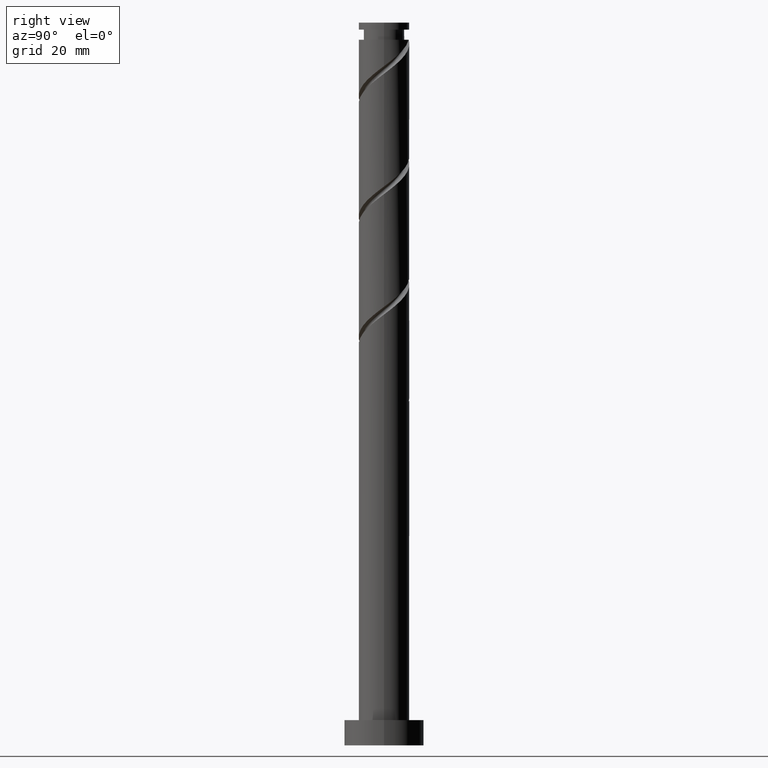
[diagram: clean part render]
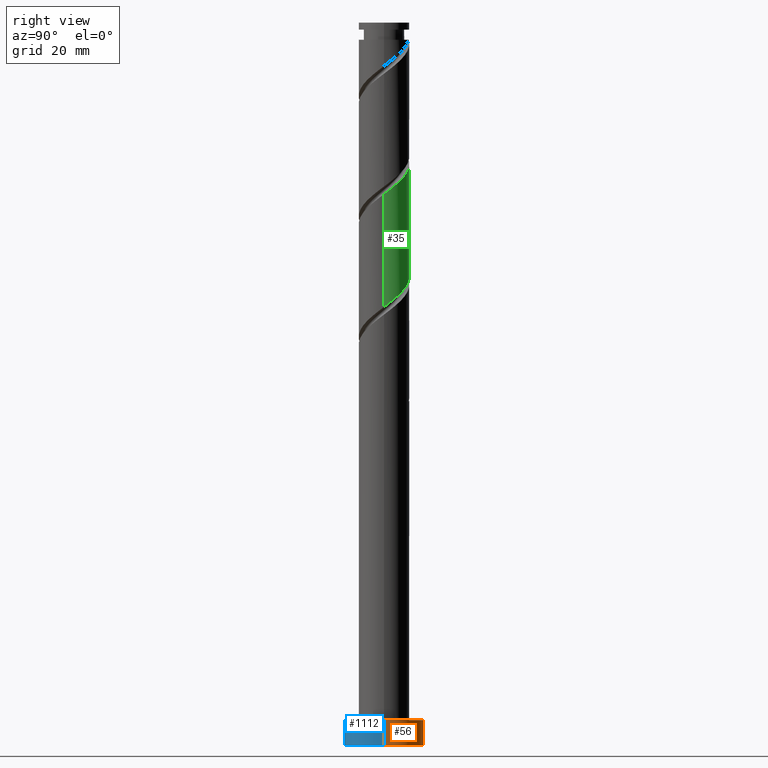
[diagram: same view with three faces highlighted in distinct colors, each labeled with its STEP entity id]
A machine part, right view with three faces highlighted in distinct colors.
Their STEP definitions:

[orange] entity #56 — the highlighted cylindrical surface (partial cylindrical patch) has radius 11 mm, axis along (-0, -0, -1).
#31 = AXIS2_PLACEMENT_3D ( 'NONE', #1274, #731, #1257 ) ;
#56 = ADVANCED_FACE ( 'NONE', ( #167 ), #192, .T. ) ;
#60 = VECTOR ( 'NONE', #1080, 1000.000000000000000 ) ;
#122 = CARTESIAN_POINT ( 'NONE',  ( 11.00000000000000000, 1.347111479062088405E-15, 7.000000000000000000 ) ) ;
#167 = FACE_OUTER_BOUND ( 'NONE', #1572, .T. ) ;
#192 = CYLINDRICAL_SURFACE ( 'NONE', #523, 11.00000000000000000 ) ;
#338 = CIRCLE ( 'NONE', #31, 11.00000000000000000 ) ;
#393 = CARTESIAN_POINT ( 'NONE',  ( -11.00000000000000000, 0.000000000000000000, 7.000000000000000000 ) ) ;
#431 = DIRECTION ( 'NONE',  ( 0.000000000000000000, 0.000000000000000000, 1.000000000000000000 ) ) ;
#460 = CARTESIAN_POINT ( 'NONE',  ( 0.000000000000000000, 0.000000000000000000, 0.000000000000000000 ) ) ;
#523 = AXIS2_PLACEMENT_3D ( 'NONE', #1275, #1118, #596 ) ;
#596 = DIRECTION ( 'NONE',  ( -1.000000000000000000, 0.000000000000000000, 0.000000000000000000 ) ) ;
#624 = ORIENTED_EDGE ( 'NONE', *, *, #926, .F. ) ;
#650 = VERTEX_POINT ( 'NONE', #122 ) ;
#705 = VERTEX_POINT ( 'NONE', #1103 ) ;
#731 = DIRECTION ( 'NONE',  ( 0.000000000000000000, 0.000000000000000000, 1.000000000000000000 ) ) ;
#745 = AXIS2_PLACEMENT_3D ( 'NONE', #460, #431, #995 ) ;
#926 = EDGE_CURVE ( 'NONE', #650, #1419, #338, .T. ) ;
#939 = LINE ( 'NONE', #1610, #60 ) ;
#957 = CARTESIAN_POINT ( 'NONE',  ( -11.00000000000000000, 0.000000000000000000, 7.000000000000000000 ) ) ;
#995 = DIRECTION ( 'NONE',  ( 1.000000000000000000, 0.000000000000000000, 0.000000000000000000 ) ) ;
#1080 = DIRECTION ( 'NONE',  ( -0.000000000000000000, -0.000000000000000000, -1.000000000000000000 ) ) ;
#1103 = CARTESIAN_POINT ( 'NONE',  ( -11.00000000000000000, 0.000000000000000000, 0.000000000000000000 ) ) ;
#1118 = DIRECTION ( 'NONE',  ( -0.000000000000000000, -0.000000000000000000, -1.000000000000000000 ) ) ;
#1176 = CARTESIAN_POINT ( 'NONE',  ( 11.00000000000000000, 1.347111479062088405E-15, 0.000000000000000000 ) ) ;
#1203 = VERTEX_POINT ( 'NONE', #1176 ) ;
#1254 = VECTOR ( 'NONE', #1502, 1000.000000000000000 ) ;
#1257 = DIRECTION ( 'NONE',  ( 1.000000000000000000, 0.000000000000000000, 0.000000000000000000 ) ) ;
#1267 = EDGE_CURVE ( 'NONE', #1419, #705, #1619, .T. ) ;
#1274 = CARTESIAN_POINT ( 'NONE',  ( 0.000000000000000000, 0.000000000000000000, 7.000000000000000000 ) ) ;
#1275 = CARTESIAN_POINT ( 'NONE',  ( 0.000000000000000000, 0.000000000000000000, 7.000000000000000000 ) ) ;
#1284 = ORIENTED_EDGE ( 'NONE', *, *, #1605, .T. ) ;
#1419 = VERTEX_POINT ( 'NONE', #393 ) ;
#1480 = CIRCLE ( 'NONE', #745, 11.00000000000000000 ) ;
#1489 = EDGE_CURVE ( 'NONE', #650, #1203, #939, .T. ) ;
#1502 = DIRECTION ( 'NONE',  ( -0.000000000000000000, -0.000000000000000000, -1.000000000000000000 ) ) ;
#1545 = ORIENTED_EDGE ( 'NONE', *, *, #1267, .F. ) ;
#1572 = EDGE_LOOP ( 'NONE', ( #624, #1694, #1284, #1545 ) ) ;
#1605 = EDGE_CURVE ( 'NONE', #1203, #705, #1480, .T. ) ;
#1610 = CARTESIAN_POINT ( 'NONE',  ( 11.00000000000000000, 1.347111479062088405E-15, 7.000000000000000000 ) ) ;
#1619 = LINE ( 'NONE', #957, #1254 ) ;
#1694 = ORIENTED_EDGE ( 'NONE', *, *, #1489, .T. ) ;

[blue] entity #1112 — the highlighted cylindrical surface (partial cylindrical patch) has radius 11 mm, axis along (-0, -0, -1).
#39 = DIRECTION ( 'NONE',  ( 0.000000000000000000, 0.000000000000000000, 1.000000000000000000 ) ) ;
#60 = VECTOR ( 'NONE', #1080, 1000.000000000000000 ) ;
#108 = EDGE_CURVE ( 'NONE', #1419, #650, #988, .T. ) ;
#122 = CARTESIAN_POINT ( 'NONE',  ( 11.00000000000000000, 1.347111479062088405E-15, 7.000000000000000000 ) ) ;
#215 = AXIS2_PLACEMENT_3D ( 'NONE', #849, #39, #578 ) ;
#229 = ORIENTED_EDGE ( 'NONE', *, *, #1489, .F. ) ;
#265 = EDGE_LOOP ( 'NONE', ( #229, #576, #732, #1087 ) ) ;
#332 = DIRECTION ( 'NONE',  ( 0.000000000000000000, 0.000000000000000000, 1.000000000000000000 ) ) ;
#344 = DIRECTION ( 'NONE',  ( -0.000000000000000000, -0.000000000000000000, -1.000000000000000000 ) ) ;
#371 = DIRECTION ( 'NONE',  ( -1.000000000000000000, 0.000000000000000000, 0.000000000000000000 ) ) ;
#393 = CARTESIAN_POINT ( 'NONE',  ( -11.00000000000000000, 0.000000000000000000, 7.000000000000000000 ) ) ;
#486 = FACE_OUTER_BOUND ( 'NONE', #265, .T. ) ;
#572 = CARTESIAN_POINT ( 'NONE',  ( 0.000000000000000000, 0.000000000000000000, 0.000000000000000000 ) ) ;
#576 = ORIENTED_EDGE ( 'NONE', *, *, #108, .F. ) ;
#578 = DIRECTION ( 'NONE',  ( 1.000000000000000000, 0.000000000000000000, 0.000000000000000000 ) ) ;
#650 = VERTEX_POINT ( 'NONE', #122 ) ;
#705 = VERTEX_POINT ( 'NONE', #1103 ) ;
#732 = ORIENTED_EDGE ( 'NONE', *, *, #1267, .T. ) ;
#768 = AXIS2_PLACEMENT_3D ( 'NONE', #1459, #344, #371 ) ;
#849 = CARTESIAN_POINT ( 'NONE',  ( 0.000000000000000000, 0.000000000000000000, 7.000000000000000000 ) ) ;
#939 = LINE ( 'NONE', #1610, #60 ) ;
#957 = CARTESIAN_POINT ( 'NONE',  ( -11.00000000000000000, 0.000000000000000000, 7.000000000000000000 ) ) ;
#988 = CIRCLE ( 'NONE', #215, 11.00000000000000000 ) ;
#1032 = CYLINDRICAL_SURFACE ( 'NONE', #768, 11.00000000000000000 ) ;
#1049 = AXIS2_PLACEMENT_3D ( 'NONE', #572, #332, #1131 ) ;
#1080 = DIRECTION ( 'NONE',  ( -0.000000000000000000, -0.000000000000000000, -1.000000000000000000 ) ) ;
#1087 = ORIENTED_EDGE ( 'NONE', *, *, #1528, .T. ) ;
#1103 = CARTESIAN_POINT ( 'NONE',  ( -11.00000000000000000, 0.000000000000000000, 0.000000000000000000 ) ) ;
#1112 = ADVANCED_FACE ( 'NONE', ( #486 ), #1032, .T. ) ;
#1131 = DIRECTION ( 'NONE',  ( 1.000000000000000000, 0.000000000000000000, 0.000000000000000000 ) ) ;
#1176 = CARTESIAN_POINT ( 'NONE',  ( 11.00000000000000000, 1.347111479062088405E-15, 0.000000000000000000 ) ) ;
#1203 = VERTEX_POINT ( 'NONE', #1176 ) ;
#1254 = VECTOR ( 'NONE', #1502, 1000.000000000000000 ) ;
#1267 = EDGE_CURVE ( 'NONE', #1419, #705, #1619, .T. ) ;
#1336 = CIRCLE ( 'NONE', #1049, 11.00000000000000000 ) ;
#1419 = VERTEX_POINT ( 'NONE', #393 ) ;
#1459 = CARTESIAN_POINT ( 'NONE',  ( 0.000000000000000000, 0.000000000000000000, 7.000000000000000000 ) ) ;
#1489 = EDGE_CURVE ( 'NONE', #650, #1203, #939, .T. ) ;
#1502 = DIRECTION ( 'NONE',  ( -0.000000000000000000, -0.000000000000000000, -1.000000000000000000 ) ) ;
#1528 = EDGE_CURVE ( 'NONE', #705, #1203, #1336, .T. ) ;
#1610 = CARTESIAN_POINT ( 'NONE',  ( 11.00000000000000000, 1.347111479062088405E-15, 7.000000000000000000 ) ) ;
#1619 = LINE ( 'NONE', #957, #1254 ) ;

[green] entity #35 — the highlighted cylindrical surface (edge-blend (fillet) strip) has radius 7 mm, axis along (-0, -0, -1).
#9 = DIRECTION ( 'NONE',  ( -0.000000000000000000, -0.000000000000000000, -1.000000000000000000 ) ) ;
#35 = ADVANCED_FACE ( 'NONE', ( #321 ), #733, .T. ) ;
#46 = CARTESIAN_POINT ( 'NONE',  ( -3.945914127944259331, 5.854831194903828973, 164.0187916055642461 ) ) ;
#74 =( BOUNDED_CURVE ( )  B_SPLINE_CURVE ( 2, ( #566, #1533, #1115, #722, #998, #1649, #1525, #1391, #711, #1256, #574, #1657, #443, #990, #306, #856, #1264, #46, #585, #1133, #453, #1543, #369, #1574, #757, #1435, #96 ),
 .UNSPECIFIED., .F., .T. ) 
 B_SPLINE_CURVE_WITH_KNOTS ( ( 3, 2, 2, 2, 2, 2, 2, 2, 2, 2, 2, 2, 2, 3 ),
 ( 0.4295317669814462946, 0.4375000000000000000, 0.4479166666666666297, 0.4583333333333333703, 0.4687500000000000000, 0.4791666666666666297, 0.4895833333333333703, 0.5000000000000000000, 0.5104166666666667407, 0.5208333333333332593, 0.5312500000000000000, 0.5416666666666667407, 0.5520833333333332593, 0.5545317669814462391 ),
 .UNSPECIFIED. ) 
 CURVE ( )  GEOMETRIC_REPRESENTATION_ITEM ( )  RATIONAL_B_SPLINE_CURVE ( ( 0.9062941362546410584, 0.9031415850403454737, 0.9090909090909207180, 0.9013135103398393078, 0.9090909090909207180, 0.9013135103398393078, 0.9090909090909207180, 0.9013135103398393078, 0.9090909090909207180, 0.9013135103398393078, 0.9090909090909207180, 0.9013135103398393078, 0.9090909090909207180, 0.9013135103398393078, 0.9090909090909207180, 0.9013135103398393078, 0.9090909090909207180, 0.9013135103398393078, 0.9090909090909207180, 0.9013135103398393078, 0.9090909090909207180, 0.9013135103398393078, 0.9090909090909207180, 0.9013135103398393078, 0.9090909090909207180, 0.9072628343904145520, 0.9062941362546410584 ) ) 
 REPRESENTATION_ITEM ( '' )  );
#96 = CARTESIAN_POINT ( 'NONE',  ( -7.000000000000008882, -1.854269271008897273E-15, 169.2052249503541645 ) ) ;
#113 = VECTOR ( 'NONE', #9, 1000.000000000000000 ) ;
#116 = EDGE_CURVE ( 'NONE', #981, #1464, #1472, .T. ) ;
#147 = ORIENTED_EDGE ( 'NONE', *, *, #116, .F. ) ;
#183 = EDGE_CURVE ( 'NONE', #1266, #356, #74, .T. ) ;
#207 = CARTESIAN_POINT ( 'NONE',  ( -6.860000000000000320, 1.392982411949269972, 136.9354582722308749 ) ) ;
#216 = EDGE_CURVE ( 'NONE', #1266, #1464, #1031, .T. ) ;
#238 = CARTESIAN_POINT ( 'NONE',  ( 7.000000000000000000, 0.2151936616037169181, 121.4955219488024056 ) ) ;
#261 = CARTESIAN_POINT ( 'NONE',  ( -1.349808202769843923, 6.930173478468214299, 130.6854582722308464 ) ) ;
#306 = CARTESIAN_POINT ( 'NONE',  ( -1.392982411949268640, 6.860000000000009202, 161.9354582722309033 ) ) ;
#321 = FACE_OUTER_BOUND ( 'NONE', #1096, .T. ) ;
#356 = VERTEX_POINT ( 'NONE', #1165 ) ;
#364 = CARTESIAN_POINT ( 'NONE',  ( -5.854831194903820979, 3.945914127944254890, 134.8521249388975605 ) ) ;
#369 = CARTESIAN_POINT ( 'NONE',  ( -6.637425475935891939, 2.223641844227017828, 167.4910138277864178 ) ) ;
#379 = CARTESIAN_POINT ( 'NONE',  ( 3.121016336671535107, 6.265720790637690385, 127.2132360500086463 ) ) ;
#394 = CARTESIAN_POINT ( 'NONE',  ( -3.097475485684180629, 6.344677473403557144, 132.0743471611197606 ) ) ;
#399 = ORIENTED_EDGE ( 'NONE', *, *, #183, .F. ) ;
#416 = ORIENTED_EDGE ( 'NONE', *, *, #216, .T. ) ;
#432 = CARTESIAN_POINT ( 'NONE',  ( -7.000000000000003553, 0.7035264706814440272, 137.4655985582517133 ) ) ;
#443 = CARTESIAN_POINT ( 'NONE',  ( 0.4299809621350623723, 6.986781546048331570, 160.5465693833419891 ) ) ;
#446 = CARTESIAN_POINT ( 'NONE',  ( -7.000000000000001776, 7.476892221810113420E-15, 137.9990249274409564 ) ) ;
#453 = CARTESIAN_POINT ( 'NONE',  ( -5.835739828502646276, 3.865765209376801792, 166.1021249388975036 ) ) ;
#500 = CARTESIAN_POINT ( 'NONE',  ( 7.000000000000000000, 8.572527594031473190E-16, 200.0000000000000000 ) ) ;
#513 = CARTESIAN_POINT ( 'NONE',  ( -4.634054933069407411, 5.326802183601722085, 133.4632360500086179 ) ) ;
#566 = CARTESIAN_POINT ( 'NONE',  ( 7.000000000000008882, -1.196302755489611383E-16, 152.5385582836874505 ) ) ;
#574 = CARTESIAN_POINT ( 'NONE',  ( 2.223641844227020048, 6.637425475935890162, 159.1576804944530750 ) ) ;
#585 = CARTESIAN_POINT ( 'NONE',  ( -4.636358155772993150, 5.244443063986621745, 164.7132360500086747 ) ) ;
#633 = CARTESIAN_POINT ( 'NONE',  ( -6.676610386371565120, 2.296118545398805111, 136.2410138277864462 ) ) ;
#687 = ORIENTED_EDGE ( 'NONE', *, *, #1316, .F. ) ;
#701 = AXIS2_PLACEMENT_3D ( 'NONE', #1651, #724, #1420 ) ;
#711 = CARTESIAN_POINT ( 'NONE',  ( 3.865765209376802680, 5.835739828502645388, 157.7687916055641892 ) ) ;
#722 = CARTESIAN_POINT ( 'NONE',  ( 6.676610386371574890, 2.296118545398805111, 154.2965693833420175 ) ) ;
#724 = DIRECTION ( 'NONE',  ( -0.000000000000000000, -0.000000000000000000, -1.000000000000000000 ) ) ;
#733 = CYLINDRICAL_SURFACE ( 'NONE', #701, 7.000000000000000000 ) ;
#757 = CARTESIAN_POINT ( 'NONE',  ( -6.986781546048331570, 0.4299809621350583200, 168.8799027166753319 ) ) ;
#785 = CARTESIAN_POINT ( 'NONE',  ( 7.000000000000000000, 1.034801883498519375E-14, 121.3323582607742850 ) ) ;
#792 = CARTESIAN_POINT ( 'NONE',  ( -2.223641844227012498, 6.637425475935884833, 131.3799027166753319 ) ) ;
#819 = CARTESIAN_POINT ( 'NONE',  ( -0.4299809621350551558, 6.986781546048324465, 129.9910138277864462 ) ) ;
#856 = CARTESIAN_POINT ( 'NONE',  ( -2.296118545398805999, 6.676610386371573114, 162.6299027166753035 ) ) ;
#912 = CARTESIAN_POINT ( 'NONE',  ( -5.244443063986615527, 4.636358155772987821, 134.1576804944531318 ) ) ;
#919 = CARTESIAN_POINT ( 'NONE',  ( 6.344677473403558920, 3.097475485684174412, 123.7410138277864320 ) ) ;
#981 = VERTEX_POINT ( 'NONE', #1418 ) ;
#990 = CARTESIAN_POINT ( 'NONE',  ( -0.4898462784997261732, 7.043389613628444401, 161.2410138277864462 ) ) ;
#998 = CARTESIAN_POINT ( 'NONE',  ( 6.265720790637702819, 3.121016336671528890, 154.9910138277864178 ) ) ;
#1031 = LINE ( 'NONE', #500, #1324 ) ;
#1062 = CARTESIAN_POINT ( 'NONE',  ( -7.000000000000000000, 0.000000000000000000, 200.0000000000000000 ) ) ;
#1066 = CARTESIAN_POINT ( 'NONE',  ( 6.637425475935885721, 2.223641844227007613, 123.0465693833419749 ) ) ;
#1081 = CARTESIAN_POINT ( 'NONE',  ( 0.4898462784997338337, 7.043389613628436408, 129.2965693833419891 ) ) ;
#1091 = CARTESIAN_POINT ( 'NONE',  ( 4.636358155772990486, 5.244443063986612863, 125.8243471611198032 ) ) ;
#1096 = EDGE_LOOP ( 'NONE', ( #399, #416, #147, #687 ) ) ;
#1115 = CARTESIAN_POINT ( 'NONE',  ( 6.860000000000009202, 1.392982411949269084, 153.6021249388975320 ) ) ;
#1133 = CARTESIAN_POINT ( 'NONE',  ( -5.326802183601726526, 4.634054933069415405, 165.4076804944530750 ) ) ;
#1165 = CARTESIAN_POINT ( 'NONE',  ( -7.000000000000008882, -1.854269271008897273E-15, 169.2052249503541361 ) ) ;
#1182 = CARTESIAN_POINT ( 'NONE',  ( -6.265720790637692161, 3.121016336671530667, 135.5465693833419607 ) ) ;
#1189 = CARTESIAN_POINT ( 'NONE',  ( 6.930173478468214299, 1.349808202769839927, 122.3521249388975320 ) ) ;
#1222 = CARTESIAN_POINT ( 'NONE',  ( 2.296118545398810884, 6.676610386371563344, 127.9076804944530892 ) ) ;
#1256 = CARTESIAN_POINT ( 'NONE',  ( 3.097475485684188179, 6.344677473403559809, 158.4632360500086463 ) ) ;
#1264 = CARTESIAN_POINT ( 'NONE',  ( -3.121016336671532443, 6.265720790637701931, 163.3243471611197890 ) ) ;
#1266 = VERTEX_POINT ( 'NONE', #1357 ) ;
#1316 = EDGE_CURVE ( 'NONE', #356, #981, #1513, .T. ) ;
#1324 = VECTOR ( 'NONE', #1444, 1000.000000000000000 ) ;
#1332 = CARTESIAN_POINT ( 'NONE',  ( 5.835739828502637394, 3.865765209376794243, 124.4354582722309033 ) ) ;
#1357 = CARTESIAN_POINT ( 'NONE',  ( 7.000000000000008882, -1.196302755489611383E-16, 152.5385582836874505 ) ) ;
#1358 = CARTESIAN_POINT ( 'NONE',  ( 1.392982411949270860, 6.860000000000000320, 128.6021249388975605 ) ) ;
#1391 = CARTESIAN_POINT ( 'NONE',  ( 4.634054933069418070, 5.326802183601721197, 157.0743471611197890 ) ) ;
#1418 = CARTESIAN_POINT ( 'NONE',  ( -7.000000000000001776, 7.476892221810113420E-15, 137.9990249274409564 ) ) ;
#1420 = DIRECTION ( 'NONE',  ( -1.000000000000000000, 0.000000000000000000, 0.000000000000000000 ) ) ;
#1435 = CARTESIAN_POINT ( 'NONE',  ( -7.000000000000009770, 0.2151936616037151140, 169.0420612623260013 ) ) ;
#1444 = DIRECTION ( 'NONE',  ( -0.000000000000000000, -0.000000000000000000, -1.000000000000000000 ) ) ;
#1463 = CARTESIAN_POINT ( 'NONE',  ( 6.986781546048324465, 0.4299809621350518807, 121.6576804944530892 ) ) ;
#1464 = VERTEX_POINT ( 'NONE', #1602 ) ;
#1468 = CARTESIAN_POINT ( 'NONE',  ( 5.326802183601722973, 4.634054933069406523, 125.1299027166753177 ) ) ;
#1472 =( BOUNDED_CURVE ( )  B_SPLINE_CURVE ( 2, ( #446, #432, #207, #633, #1182, #364, #912, #513, #1721, #394, #792, #261, #819, #1081, #1358, #1222, #379, #1749, #1091, #1468, #1332, #919, #1066, #1189, #1463, #238, #785 ),
 .UNSPECIFIED., .F., .T. ) 
 B_SPLINE_CURVE_WITH_KNOTS ( ( 3, 2, 2, 2, 2, 2, 2, 2, 2, 2, 2, 2, 2, 3 ),
 ( 0.6795317669814462391, 0.6875000000000000000, 0.6979166666666666297, 0.7083333333333333703, 0.7187500000000000000, 0.7291666666666666297, 0.7395833333333333703, 0.7500000000000000000, 0.7604166666666666297, 0.7708333333333333703, 0.7812500000000000000, 0.7916666666666666297, 0.8020833333333333703, 0.8045317669814462391 ),
 .UNSPECIFIED. ) 
 CURVE ( )  GEOMETRIC_REPRESENTATION_ITEM ( )  RATIONAL_B_SPLINE_CURVE ( ( 0.9062941362546361734, 0.9031415850403403667, 0.9090909090909158330, 0.9013135103398343118, 0.9090909090909158330, 0.9013135103398343118, 0.9090909090909158330, 0.9013135103398343118, 0.9090909090909158330, 0.9013135103398343118, 0.9090909090909158330, 0.9013135103398343118, 0.9090909090909158330, 0.9013135103398343118, 0.9090909090909158330, 0.9013135103398343118, 0.9090909090909158330, 0.9013135103398343118, 0.9090909090909158330, 0.9013135103398343118, 0.9090909090909158330, 0.9013135103398343118, 0.9090909090909158330, 0.9013135103398343118, 0.9090909090909158330, 0.9072628343904096671, 0.9062941362546361734 ) ) 
 REPRESENTATION_ITEM ( '' )  );
#1513 = LINE ( 'NONE', #1062, #113 ) ;
#1525 = CARTESIAN_POINT ( 'NONE',  ( 5.244443063986624409, 4.636358155772989598, 156.3799027166753319 ) ) ;
#1533 = CARTESIAN_POINT ( 'NONE',  ( 7.000000000000009770, 0.7035264706814422508, 153.0719846528767221 ) ) ;
#1543 = CARTESIAN_POINT ( 'NONE',  ( -6.344677473403561585, 3.097475485684185514, 166.7965693833419607 ) ) ;
#1574 = CARTESIAN_POINT ( 'NONE',  ( -6.930173478468220516, 1.349808202769846810, 168.1854582722308180 ) ) ;
#1602 = CARTESIAN_POINT ( 'NONE',  ( 7.000000000000000000, 1.034801883498519533E-14, 121.3323582607742850 ) ) ;
#1649 = CARTESIAN_POINT ( 'NONE',  ( 5.854831194903832525, 3.945914127944254002, 155.6854582722308749 ) ) ;
#1651 = CARTESIAN_POINT ( 'NONE',  ( 0.000000000000000000, 0.000000000000000000, 200.0000000000000000 ) ) ;
#1657 = CARTESIAN_POINT ( 'NONE',  ( 1.349808202769851251, 6.930173478468219628, 159.8521249388975605 ) ) ;
#1721 = CARTESIAN_POINT ( 'NONE',  ( -3.865765209376795575, 5.835739828502638282, 132.7687916055642177 ) ) ;
#1749 = CARTESIAN_POINT ( 'NONE',  ( 3.945914127944259331, 5.854831194903819203, 126.5187916055642319 ) ) ;